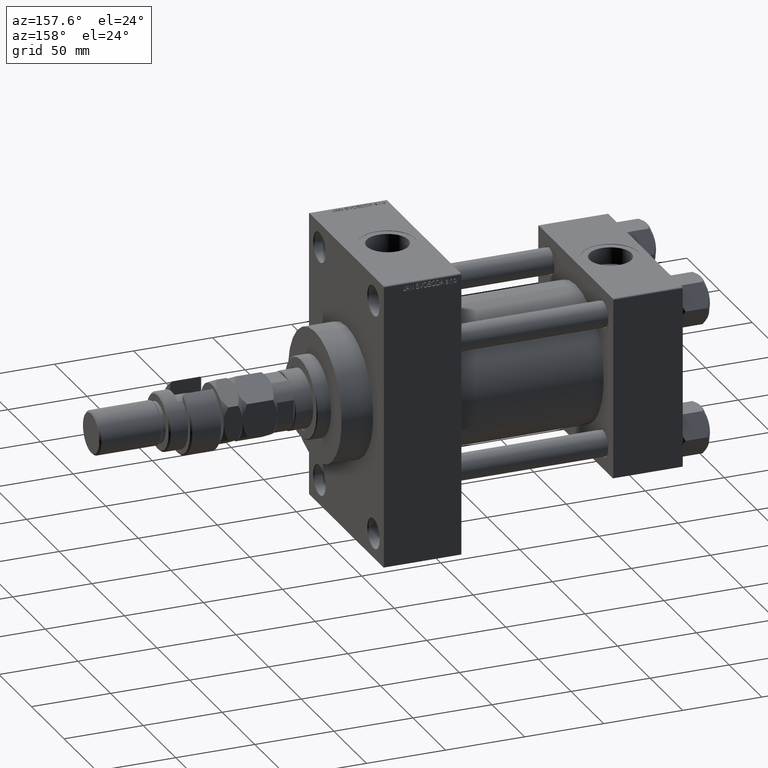
[diagram: clean part render]
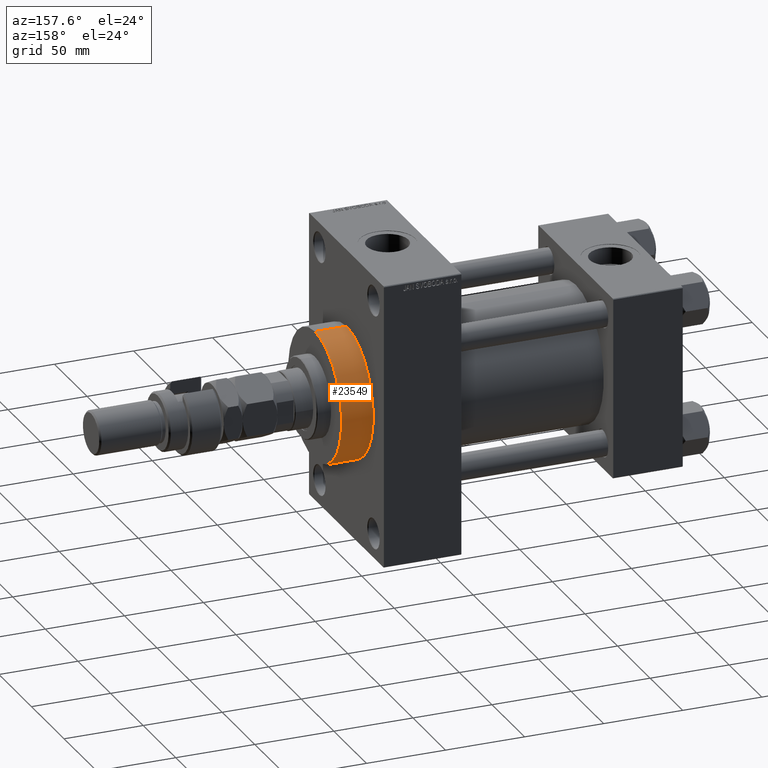
[diagram: same view with one face highlighted and labeled with its STEP entity id]
A machine part, auxiliary view. The second image highlights one B-rep face of the part: STEP entity #23549.
In plain terms, the highlighted cylindrical surface (partial cylindrical patch) has radius 41 mm, axis along (-1, -0, -0).
Its self-contained STEP definition (entity closure, byte-faithful):
#433 = DIRECTION ( 'NONE',  ( 0.000000000000000000, 0.000000000000000000, -1.000000000000000000 ) ) ;
#1260 = VERTEX_POINT ( 'NONE', #42897 ) ;
#1384 = DIRECTION ( 'NONE',  ( 0.000000000000000000, 0.000000000000000000, -1.000000000000000000 ) ) ;
#1893 = CARTESIAN_POINT ( 'NONE',  ( 189.0000000000000000, 0.000000000000000000, 0.000000000000000000 ) ) ;
#2867 = CIRCLE ( 'NONE', #23271, 41.00000000000000000 ) ;
#4981 = EDGE_CURVE ( 'NONE', #31026, #19858, #30413, .T. ) ;
#7594 = DIRECTION ( 'NONE',  ( -1.000000000000000000, -0.000000000000000000, -0.000000000000000000 ) ) ;
#9036 = FACE_OUTER_BOUND ( 'NONE', #19830, .T. ) ;
#9661 = AXIS2_PLACEMENT_3D ( 'NONE', #16966, #32557, #28975 ) ;
#12382 = CARTESIAN_POINT ( 'NONE',  ( 189.0000000000000000, 0.000000000000000000, 41.00000000000000000 ) ) ;
#14630 = ORIENTED_EDGE ( 'NONE', *, *, #18816, .F. ) ;
#15304 = EDGE_CURVE ( 'NONE', #26010, #31026, #30344, .T. ) ;
#16023 = CARTESIAN_POINT ( 'NONE',  ( 209.0000000000000000, 0.000000000000000000, 0.000000000000000000 ) ) ;
#16368 = EDGE_CURVE ( 'NONE', #26010, #1260, #2867, .T. ) ;
#16774 = DIRECTION ( 'NONE',  ( -1.000000000000000000, -0.000000000000000000, -0.000000000000000000 ) ) ;
#16966 = CARTESIAN_POINT ( 'NONE',  ( 209.0000000000000000, 0.000000000000000000, 0.000000000000000000 ) ) ;
#18453 = ORIENTED_EDGE ( 'NONE', *, *, #15304, .T. ) ;
#18816 = EDGE_CURVE ( 'NONE', #1260, #19858, #27774, .T. ) ;
#19101 = CARTESIAN_POINT ( 'NONE',  ( 209.0000000000000000, 5.021051876504148963E-15, -41.00000000000000000 ) ) ;
#19830 = EDGE_LOOP ( 'NONE', ( #40430, #18453, #42622, #14630 ) ) ;
#19858 = VERTEX_POINT ( 'NONE', #12382 ) ;
#22613 = CARTESIAN_POINT ( 'NONE',  ( 209.0000000000000000, 5.021051876504148963E-15, -41.00000000000000000 ) ) ;
#23271 = AXIS2_PLACEMENT_3D ( 'NONE', #16023, #35697, #433 ) ;
#23549 = ADVANCED_FACE ( 'NONE', ( #9036 ), #40207, .T. ) ;
#24028 = VECTOR ( 'NONE', #7594, 1000.000000000000000 ) ;
#26010 = VERTEX_POINT ( 'NONE', #22613 ) ;
#27774 = LINE ( 'NONE', #39514, #44537 ) ;
#28975 = DIRECTION ( 'NONE',  ( 0.000000000000000000, 0.000000000000000000, 1.000000000000000000 ) ) ;
#30344 = LINE ( 'NONE', #19101, #24028 ) ;
#30413 = CIRCLE ( 'NONE', #34487, 41.00000000000000000 ) ;
#31026 = VERTEX_POINT ( 'NONE', #37780 ) ;
#32557 = DIRECTION ( 'NONE',  ( -1.000000000000000000, -0.000000000000000000, -0.000000000000000000 ) ) ;
#34487 = AXIS2_PLACEMENT_3D ( 'NONE', #1893, #36384, #1384 ) ;
#35697 = DIRECTION ( 'NONE',  ( 1.000000000000000000, 0.000000000000000000, 0.000000000000000000 ) ) ;
#36384 = DIRECTION ( 'NONE',  ( 1.000000000000000000, 0.000000000000000000, 0.000000000000000000 ) ) ;
#37780 = CARTESIAN_POINT ( 'NONE',  ( 189.0000000000000000, 5.021051876504148963E-15, -41.00000000000000000 ) ) ;
#39514 = CARTESIAN_POINT ( 'NONE',  ( 209.0000000000000000, 0.000000000000000000, 41.00000000000000000 ) ) ;
#40207 = CYLINDRICAL_SURFACE ( 'NONE', #9661, 41.00000000000000000 ) ;
#40430 = ORIENTED_EDGE ( 'NONE', *, *, #16368, .F. ) ;
#42622 = ORIENTED_EDGE ( 'NONE', *, *, #4981, .T. ) ;
#42897 = CARTESIAN_POINT ( 'NONE',  ( 209.0000000000000000, 0.000000000000000000, 41.00000000000000000 ) ) ;
#44537 = VECTOR ( 'NONE', #16774, 1000.000000000000000 ) ;